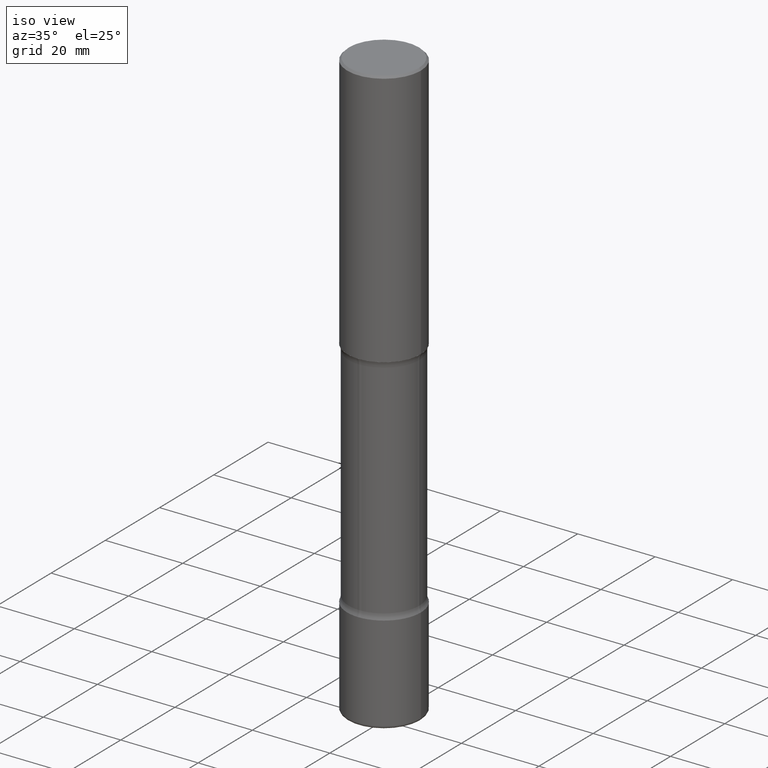
[diagram: clean part render]
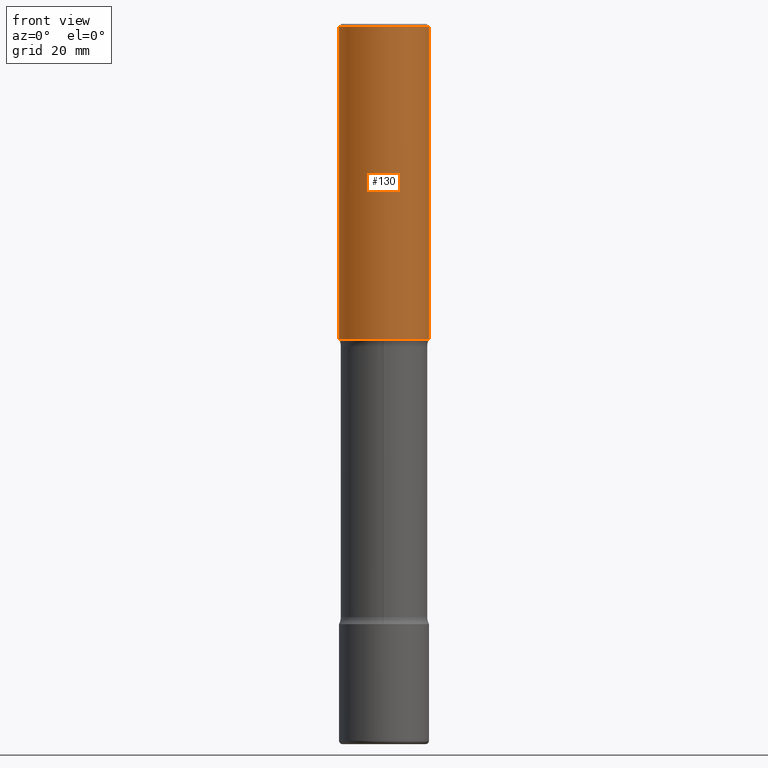
[diagram: tour spotlight — one face highlighted and labeled with its STEP entity id]
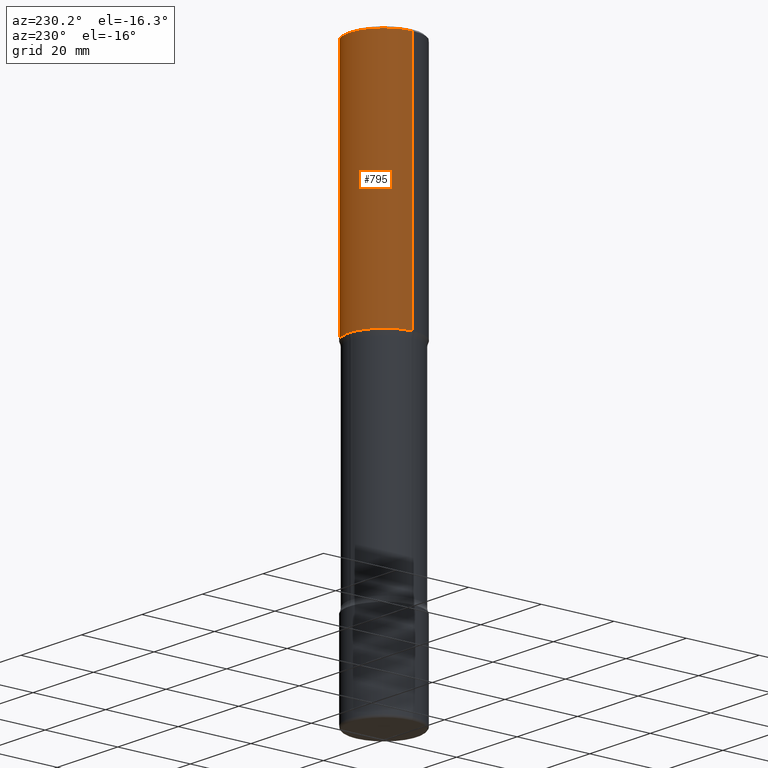
[diagram: tour spotlight — one face highlighted and labeled with its STEP entity id]
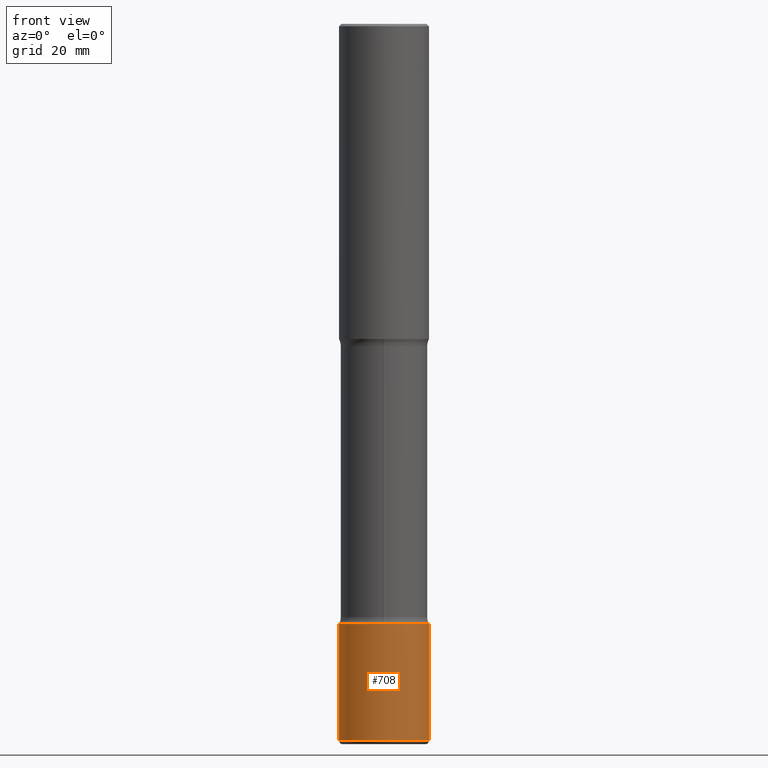
[diagram: tour spotlight — one face highlighted and labeled with its STEP entity id]
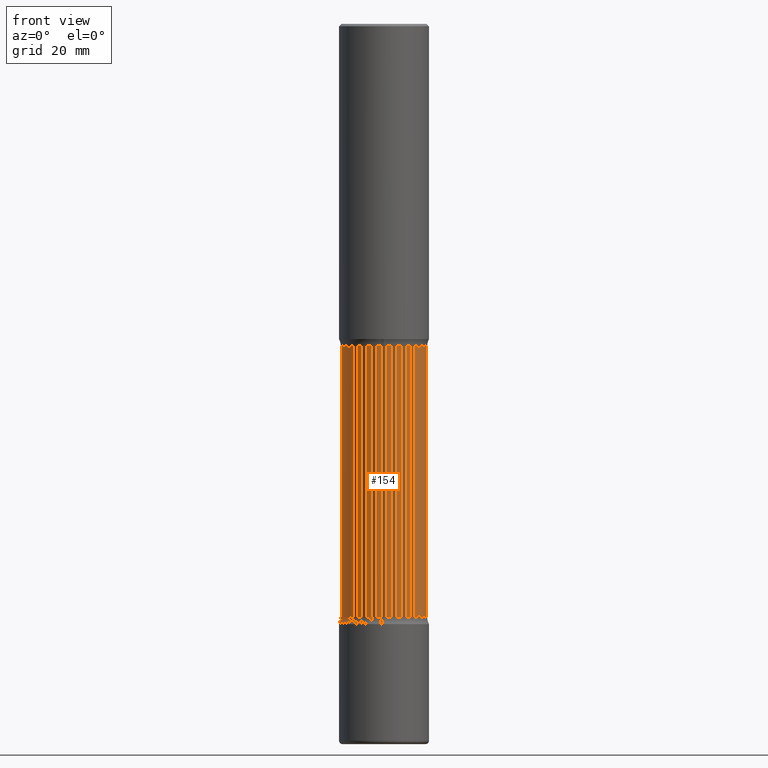
[diagram: tour spotlight — one face highlighted and labeled with its STEP entity id]
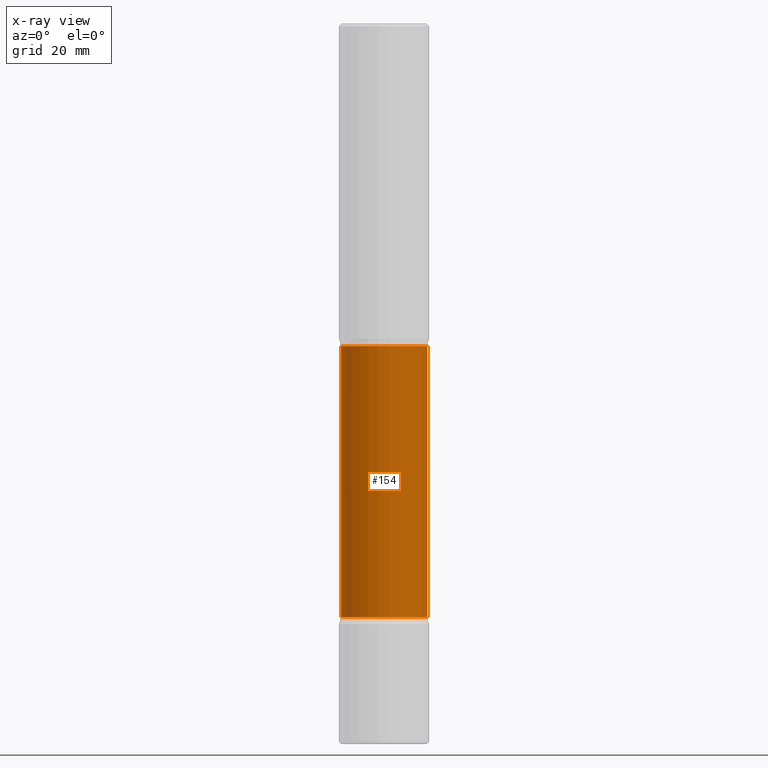
[diagram: x-ray of the same camera — body ghosted, this tour face saturated]
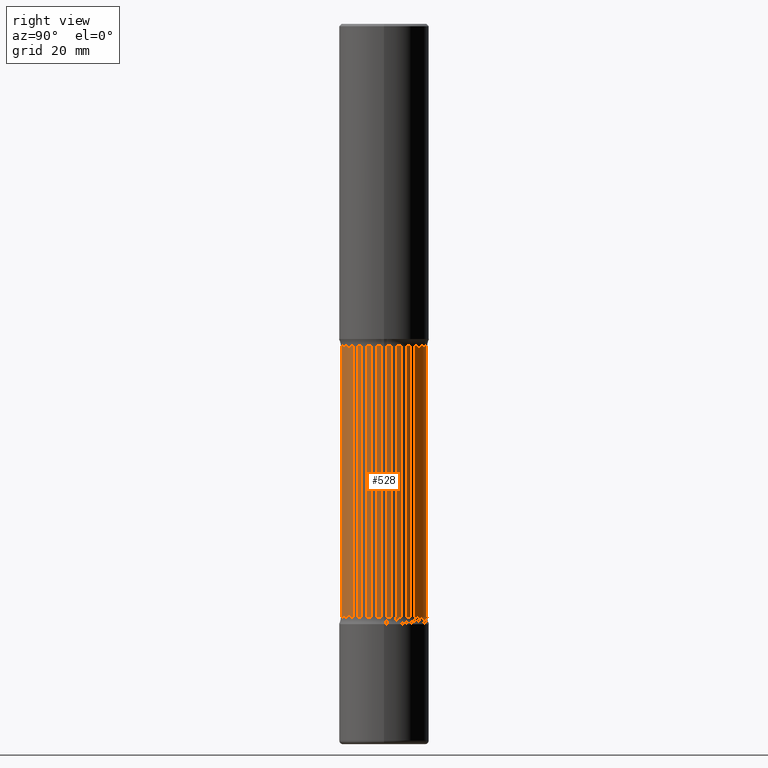
[diagram: tour spotlight — one face highlighted and labeled with its STEP entity id]
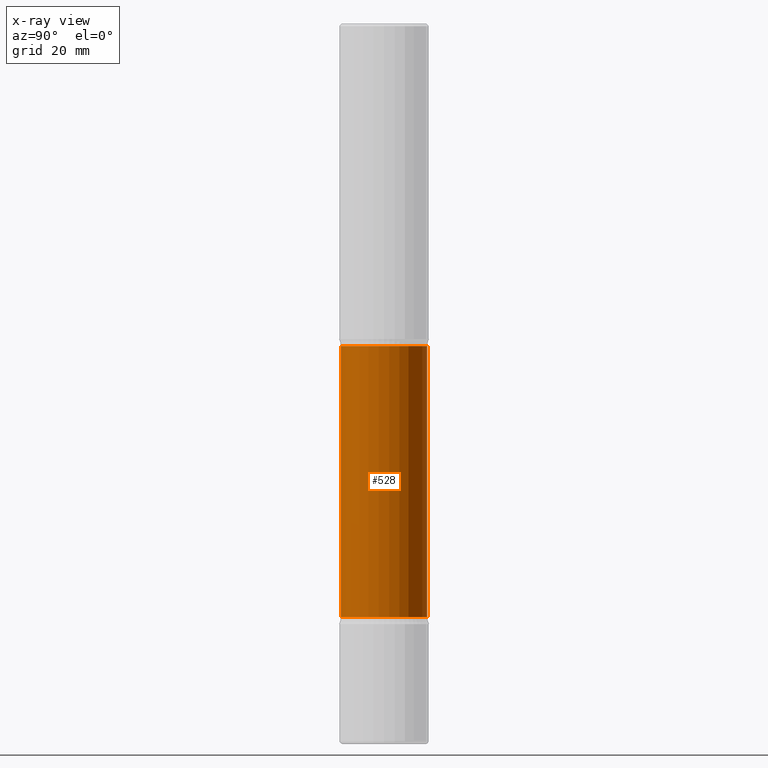
[diagram: x-ray of the same camera — body ghosted, this tour face saturated]
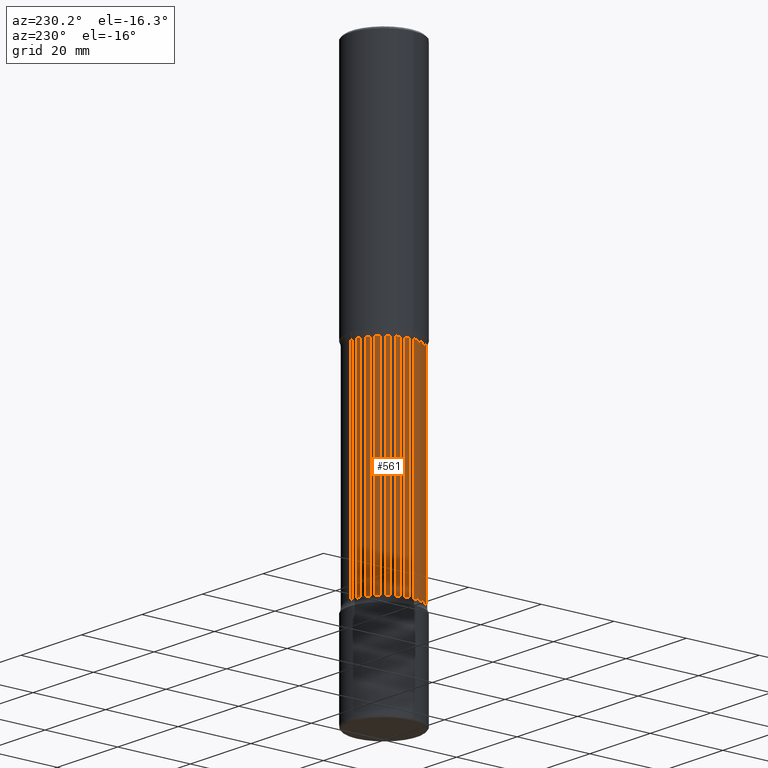
[diagram: tour spotlight — one face highlighted and labeled with its STEP entity id]
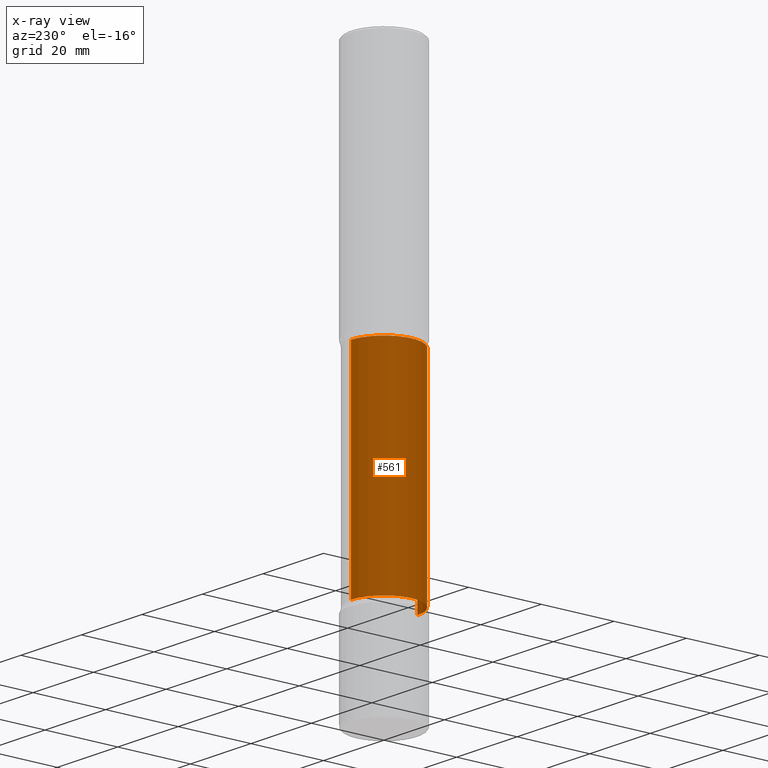
[diagram: x-ray of the same camera — body ghosted, this tour face saturated]
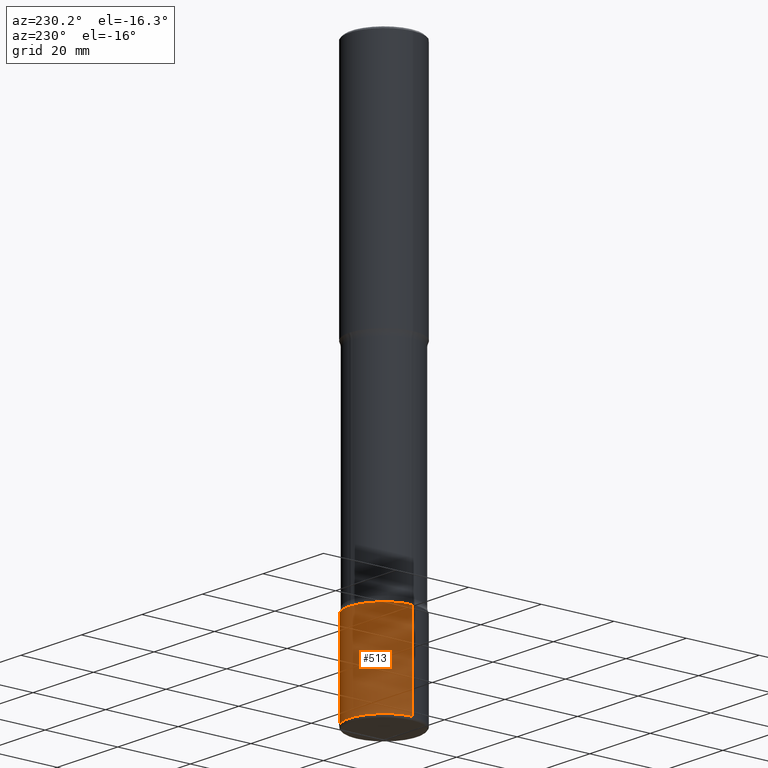
[diagram: tour spotlight — one face highlighted and labeled with its STEP entity id]
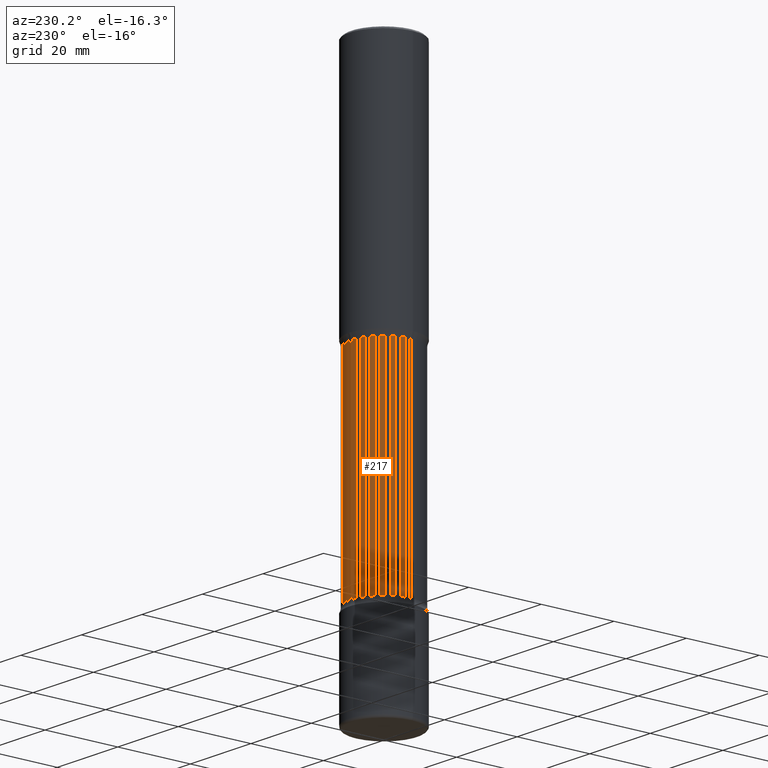
[diagram: tour spotlight — one face highlighted and labeled with its STEP entity id]
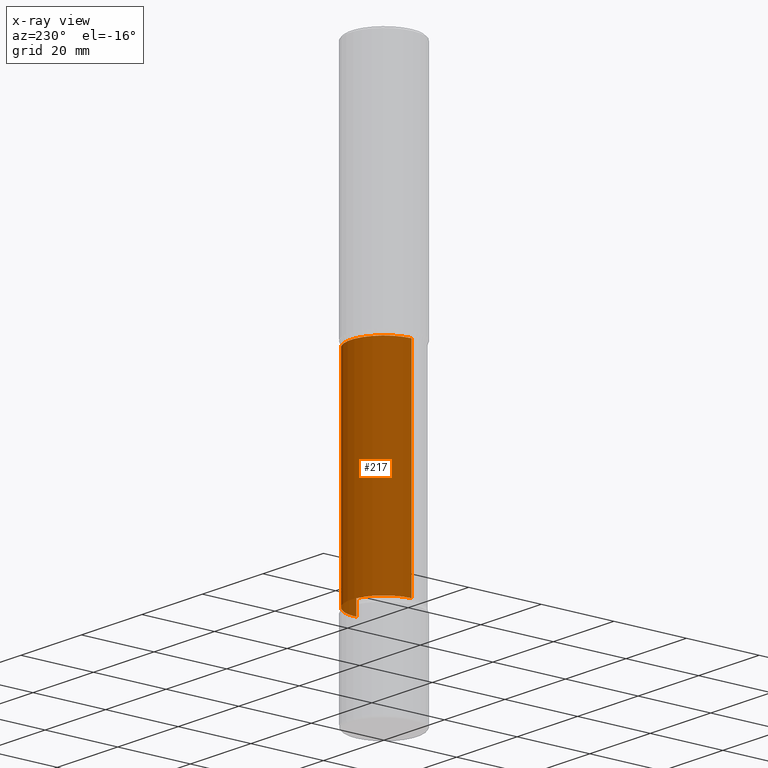
[diagram: x-ray of the same camera — body ghosted, this tour face saturated]
A machine part: a face-by-face anatomy tour. The part has 30 B-rep faces; the first image is the clean iso view, then the 8 largest visible faces are spotlighted one at a time (largest first), each with its STEP entity span.

Face 1 — front view, entity #130. In plain terms, the highlighted cylindrical surface (partial cylindrical patch) has radius 9.525 mm, axis along (-0, 0, 1).
Definition (entity closure, byte-faithful):
#17 = CIRCLE ( 'NONE', #245, 0.3750000000000000555 ) ;
#52 = VECTOR ( 'NONE', #393, 39.37007874015748143 ) ;
#78 = CARTESIAN_POINT ( 'NONE',  ( -0.3750000000000000555, -1.952948811519682680E-15, -2.625000000000000444 ) ) ;
#130 = ADVANCED_FACE ( 'NONE', ( #530 ), #785, .T. ) ;
#139 = ORIENTED_EDGE ( 'NONE', *, *, #179, .T. ) ;
#141 = CARTESIAN_POINT ( 'NONE',  ( 0.3750000000000000555, -1.178374951859560978E-14, -2.625000000000000444 ) ) ;
#170 = DIRECTION ( 'NONE',  ( 1.000000000000000000, -6.982962677686266711E-15, 4.876176775795935793E-29 ) ) ;
#179 = EDGE_CURVE ( 'NONE', #204, #270, #707, .T. ) ;
#196 = EDGE_LOOP ( 'NONE', ( #255, #261, #139, #645 ) ) ;
#201 = VERTEX_POINT ( 'NONE', #78 ) ;
#204 = VERTEX_POINT ( 'NONE', #141 ) ;
#209 = LINE ( 'NONE', #390, #52 ) ;
#222 = DIRECTION ( 'NONE',  ( -2.445468806185136597E-29, 3.491481338843145583E-15, 1.000000000000000000 ) ) ;
#245 = AXIS2_PLACEMENT_3D ( 'NONE', #310, #525, #572 ) ;
#255 = ORIENTED_EDGE ( 'NONE', *, *, #453, .F. ) ;
#256 = CARTESIAN_POINT ( 'NONE',  ( 0.3749999999999998890, -2.618611004132349228E-15, 1.828566290923475362E-29 ) ) ;
#261 = ORIENTED_EDGE ( 'NONE', *, *, #494, .T. ) ;
#270 = VERTEX_POINT ( 'NONE', #524 ) ;
#278 = DIRECTION ( 'NONE',  ( -2.445468806185136597E-29, 3.491481338843145583E-15, 1.000000000000000000 ) ) ;
#310 = CARTESIAN_POINT ( 'NONE',  ( 6.419355616235984688E-29, -9.165138514463258190E-15, -2.625000000000000444 ) ) ;
#390 = CARTESIAN_POINT ( 'NONE',  ( -0.3749999999999998890, 2.664535259100374908E-15, -1.844600658845589038E-29 ) ) ;
#393 = DIRECTION ( 'NONE',  ( -2.445468806185136877E-29, 3.491481338843145188E-15, 1.000000000000000000 ) ) ;
#404 = VERTEX_POINT ( 'NONE', #568 ) ;
#432 = VECTOR ( 'NONE', #506, 39.37007874015748143 ) ;
#453 = EDGE_CURVE ( 'NONE', #201, #404, #209, .T. ) ;
#494 = EDGE_CURVE ( 'NONE', #201, #204, #17, .T. ) ;
#506 = DIRECTION ( 'NONE',  ( -2.445468806185136877E-29, 3.491481338843145188E-15, 1.000000000000000000 ) ) ;
#524 = CARTESIAN_POINT ( 'NONE',  ( 0.3749999999999997780, -2.642516375941186056E-15, -0.02000000000000008715 ) ) ;
#525 = DIRECTION ( 'NONE',  ( -2.445468806185136597E-29, 3.491481338843145583E-15, 1.000000000000000000 ) ) ;
#530 = FACE_OUTER_BOUND ( 'NONE', #196, .T. ) ;
#540 = DIRECTION ( 'NONE',  ( 1.000000000000000000, -6.982962677686265922E-15, 0.000000000000000000 ) ) ;
#562 = EDGE_CURVE ( 'NONE', #404, #270, #688, .T. ) ;
#568 = CARTESIAN_POINT ( 'NONE',  ( -0.3749999999999997780, 2.548781377355484746E-15, -0.02000000000000008715 ) ) ;
#572 = DIRECTION ( 'NONE',  ( 1.000000000000000000, -6.982962677686266711E-15, 0.000000000000000000 ) ) ;
#576 = AXIS2_PLACEMENT_3D ( 'NONE', #729, #222, #170 ) ;
#645 = ORIENTED_EDGE ( 'NONE', *, *, #562, .F. ) ;
#688 = CIRCLE ( 'NONE', #700, 0.3749999999999997780 ) ;
#700 = AXIS2_PLACEMENT_3D ( 'NONE', #731, #278, #540 ) ;
#707 = LINE ( 'NONE', #256, #432 ) ;
#729 = CARTESIAN_POINT ( 'NONE',  ( 0.000000000000000000, 0.000000000000000000, 0.000000000000000000 ) ) ;
#731 = CARTESIAN_POINT ( 'NONE',  ( 4.890937612370294178E-31, -6.982962677686321191E-17, -0.02000000000000008715 ) ) ;
#785 = CYLINDRICAL_SURFACE ( 'NONE', #576, 0.3749999999999998890 ) ;

Face 2 — auxiliary view, entity #795. In plain terms, the highlighted cylindrical surface (partial cylindrical patch) has radius 9.525 mm, axis along (-0, 0, 1).
Definition (entity closure, byte-faithful):
#52 = VECTOR ( 'NONE', #393, 39.37007874015748143 ) ;
#78 = CARTESIAN_POINT ( 'NONE',  ( -0.3750000000000000555, -1.952948811519682680E-15, -2.625000000000000444 ) ) ;
#95 = EDGE_CURVE ( 'NONE', #204, #201, #419, .T. ) ;
#114 = AXIS2_PLACEMENT_3D ( 'NONE', #534, #227, #272 ) ;
#119 = DIRECTION ( 'NONE',  ( -2.445468806185136597E-29, 3.491481338843145583E-15, 1.000000000000000000 ) ) ;
#141 = CARTESIAN_POINT ( 'NONE',  ( 0.3750000000000000555, -1.178374951859560978E-14, -2.625000000000000444 ) ) ;
#148 = EDGE_LOOP ( 'NONE', ( #436, #504, #395, #751 ) ) ;
#160 = EDGE_CURVE ( 'NONE', #270, #404, #659, .T. ) ;
#179 = EDGE_CURVE ( 'NONE', #204, #270, #707, .T. ) ;
#201 = VERTEX_POINT ( 'NONE', #78 ) ;
#204 = VERTEX_POINT ( 'NONE', #141 ) ;
#209 = LINE ( 'NONE', #390, #52 ) ;
#211 = CARTESIAN_POINT ( 'NONE',  ( 0.000000000000000000, 0.000000000000000000, 0.000000000000000000 ) ) ;
#227 = DIRECTION ( 'NONE',  ( -2.445468806185136597E-29, 3.491481338843145583E-15, 1.000000000000000000 ) ) ;
#230 = FACE_OUTER_BOUND ( 'NONE', #148, .T. ) ;
#249 = DIRECTION ( 'NONE',  ( -2.445468806185136597E-29, 3.491481338843145583E-15, 1.000000000000000000 ) ) ;
#256 = CARTESIAN_POINT ( 'NONE',  ( 0.3749999999999998890, -2.618611004132349228E-15, 1.828566290923475362E-29 ) ) ;
#270 = VERTEX_POINT ( 'NONE', #524 ) ;
#272 = DIRECTION ( 'NONE',  ( 1.000000000000000000, -6.982962677686266711E-15, 0.000000000000000000 ) ) ;
#336 = CYLINDRICAL_SURFACE ( 'NONE', #503, 0.3749999999999998890 ) ;
#354 = DIRECTION ( 'NONE',  ( 1.000000000000000000, -6.982962677686265922E-15, 0.000000000000000000 ) ) ;
#390 = CARTESIAN_POINT ( 'NONE',  ( -0.3749999999999998890, 2.664535259100374908E-15, -1.844600658845589038E-29 ) ) ;
#393 = DIRECTION ( 'NONE',  ( -2.445468806185136877E-29, 3.491481338843145188E-15, 1.000000000000000000 ) ) ;
#395 = ORIENTED_EDGE ( 'NONE', *, *, #160, .F. ) ;
#404 = VERTEX_POINT ( 'NONE', #568 ) ;
#419 = CIRCLE ( 'NONE', #114, 0.3750000000000000555 ) ;
#432 = VECTOR ( 'NONE', #506, 39.37007874015748143 ) ;
#436 = ORIENTED_EDGE ( 'NONE', *, *, #95, .T. ) ;
#453 = EDGE_CURVE ( 'NONE', #201, #404, #209, .T. ) ;
#503 = AXIS2_PLACEMENT_3D ( 'NONE', #211, #249, #693 ) ;
#504 = ORIENTED_EDGE ( 'NONE', *, *, #453, .T. ) ;
#506 = DIRECTION ( 'NONE',  ( -2.445468806185136877E-29, 3.491481338843145188E-15, 1.000000000000000000 ) ) ;
#518 = AXIS2_PLACEMENT_3D ( 'NONE', #679, #119, #354 ) ;
#524 = CARTESIAN_POINT ( 'NONE',  ( 0.3749999999999997780, -2.642516375941186056E-15, -0.02000000000000008715 ) ) ;
#534 = CARTESIAN_POINT ( 'NONE',  ( 6.419355616235984688E-29, -9.165138514463258190E-15, -2.625000000000000444 ) ) ;
#568 = CARTESIAN_POINT ( 'NONE',  ( -0.3749999999999997780, 2.548781377355484746E-15, -0.02000000000000008715 ) ) ;
#659 = CIRCLE ( 'NONE', #518, 0.3749999999999997780 ) ;
#679 = CARTESIAN_POINT ( 'NONE',  ( 4.890937612370294178E-31, -6.982962677686321191E-17, -0.02000000000000008715 ) ) ;
#693 = DIRECTION ( 'NONE',  ( 1.000000000000000000, -6.982962677686266711E-15, 4.876176775795935793E-29 ) ) ;
#707 = LINE ( 'NONE', #256, #432 ) ;
#751 = ORIENTED_EDGE ( 'NONE', *, *, #179, .F. ) ;
#795 = ADVANCED_FACE ( 'NONE', ( #230 ), #336, .T. ) ;

Face 3 — front view, entity #708. In plain terms, the highlighted cylindrical surface (partial cylindrical patch) has radius 9.525 mm, axis along (-0, 0, 1).
Definition (entity closure, byte-faithful):
#74 = FACE_OUTER_BOUND ( 'NONE', #138, .T. ) ;
#76 = CARTESIAN_POINT ( 'NONE',  ( 1.222734403092568523E-28, -1.745740669421572989E-14, -5.000000000000000000 ) ) ;
#138 = EDGE_LOOP ( 'NONE', ( #253, #317, #456, #569 ) ) ;
#166 = DIRECTION ( 'NONE',  ( -2.445468806185136597E-29, 3.491481338843145583E-15, 1.000000000000000000 ) ) ;
#177 = LINE ( 'NONE', #220, #747 ) ;
#194 = AXIS2_PLACEMENT_3D ( 'NONE', #303, #357, #479 ) ;
#220 = CARTESIAN_POINT ( 'NONE',  ( 0.3750000000000001110, -2.618611004132350411E-15, 1.828566290923476483E-29 ) ) ;
#223 = AXIS2_PLACEMENT_3D ( 'NONE', #76, #300, #306 ) ;
#228 = CARTESIAN_POINT ( 'NONE',  ( 1.459944877292526494E-28, -2.084414359289357934E-14, -5.969999999999999751 ) ) ;
#253 = ORIENTED_EDGE ( 'NONE', *, *, #613, .F. ) ;
#262 = VERTEX_POINT ( 'NONE', #275 ) ;
#275 = CARTESIAN_POINT ( 'NONE',  ( 0.3750000000000002220, -2.346275459702592935E-14, -5.969999999999999751 ) ) ;
#300 = DIRECTION ( 'NONE',  ( -2.445468806185136597E-29, 3.491481338843145583E-15, 1.000000000000000000 ) ) ;
#303 = CARTESIAN_POINT ( 'NONE',  ( 0.000000000000000000, 0.000000000000000000, 0.000000000000000000 ) ) ;
#306 = DIRECTION ( 'NONE',  ( 1.000000000000000000, -6.982962677686266711E-15, 0.000000000000000000 ) ) ;
#317 = ORIENTED_EDGE ( 'NONE', *, *, #759, .T. ) ;
#320 = VERTEX_POINT ( 'NONE', #801 ) ;
#357 = DIRECTION ( 'NONE',  ( -2.445468806185136597E-29, 3.491481338843145583E-15, 1.000000000000000000 ) ) ;
#424 = LINE ( 'NONE', #426, #736 ) ;
#426 = CARTESIAN_POINT ( 'NONE',  ( -0.3750000000000001110, 2.664535259100376486E-15, -1.844600658845590159E-29 ) ) ;
#456 = ORIENTED_EDGE ( 'NONE', *, *, #750, .T. ) ;
#466 = CIRCLE ( 'NONE', #566, 0.3750000000000001110 ) ;
#468 = VERTEX_POINT ( 'NONE', #763 ) ;
#479 = DIRECTION ( 'NONE',  ( 1.000000000000000000, -6.982962677686265922E-15, 4.876176775795935793E-29 ) ) ;
#543 = DIRECTION ( 'NONE',  ( 1.000000000000000000, -6.982962677686270655E-15, 0.000000000000000000 ) ) ;
#547 = CARTESIAN_POINT ( 'NONE',  ( 0.3750000000000000555, -2.007601769834807990E-14, -5.000000000000000000 ) ) ;
#566 = AXIS2_PLACEMENT_3D ( 'NONE', #228, #166, #543 ) ;
#569 = ORIENTED_EDGE ( 'NONE', *, *, #752, .F. ) ;
#570 = DIRECTION ( 'NONE',  ( -2.445468806185136877E-29, 3.491481338843145188E-15, 1.000000000000000000 ) ) ;
#593 = VERTEX_POINT ( 'NONE', #547 ) ;
#613 = EDGE_CURVE ( 'NONE', #320, #468, #424, .T. ) ;
#686 = DIRECTION ( 'NONE',  ( -2.445468806185136877E-29, 3.491481338843145188E-15, 1.000000000000000000 ) ) ;
#702 = CYLINDRICAL_SURFACE ( 'NONE', #194, 0.3750000000000001110 ) ;
#708 = ADVANCED_FACE ( 'NONE', ( #74 ), #702, .T. ) ;
#736 = VECTOR ( 'NONE', #570, 39.37007874015748143 ) ;
#747 = VECTOR ( 'NONE', #686, 39.37007874015748143 ) ;
#750 = EDGE_CURVE ( 'NONE', #262, #593, #177, .T. ) ;
#752 = EDGE_CURVE ( 'NONE', #468, #593, #790, .T. ) ;
#759 = EDGE_CURVE ( 'NONE', #320, #262, #466, .T. ) ;
#763 = CARTESIAN_POINT ( 'NONE',  ( -0.3750000000000000555, -1.648623988445427734E-14, -5.000000000000000000 ) ) ;
#790 = CIRCLE ( 'NONE', #223, 0.3750000000000000555 ) ;
#801 = CARTESIAN_POINT ( 'NONE',  ( -0.3750000000000002220, -1.817960833379319733E-14, -5.969999999999999751 ) ) ;

Face 4 — front view, entity #154. An x-ray twin of the same camera follows (body ghosted, this face saturated) — the face is partly hidden behind the body. In plain terms, the highlighted cylindrical surface (partial cylindrical patch) has radius 9.144 mm, axis along (-0, 0, 1).
Definition (entity closure, byte-faithful):
#1 = DIRECTION ( 'NONE',  ( -2.445468806185136597E-29, 3.491481338843145583E-15, 1.000000000000000000 ) ) ;
#3 = CIRCLE ( 'NONE', #35, 0.3600000000000002642 ) ;
#21 = LINE ( 'NONE', #389, #663 ) ;
#35 = AXIS2_PLACEMENT_3D ( 'NONE', #288, #171, #478 ) ;
#72 = EDGE_CURVE ( 'NONE', #602, #89, #163, .T. ) ;
#82 = AXIS2_PLACEMENT_3D ( 'NONE', #344, #470, #734 ) ;
#86 = CARTESIAN_POINT ( 'NONE',  ( -0.3600000000000002642, -1.474251453077752871E-14, -4.940628289564810594 ) ) ;
#89 = VERTEX_POINT ( 'NONE', #606 ) ;
#103 = ORIENTED_EDGE ( 'NONE', *, *, #724, .T. ) ;
#154 = ADVANCED_FACE ( 'NONE', ( #229 ), #216, .T. ) ;
#163 = CIRCLE ( 'NONE', #564, 0.3599999999999997646 ) ;
#171 = DIRECTION ( 'NONE',  ( -2.445468806185136597E-29, 3.491481338843145583E-15, 1.000000000000000000 ) ) ;
#183 = ORIENTED_EDGE ( 'NONE', *, *, #369, .F. ) ;
#216 = CYLINDRICAL_SURFACE ( 'NONE', #82, 0.3599999999999999867 ) ;
#229 = FACE_OUTER_BOUND ( 'NONE', #719, .T. ) ;
#288 = CARTESIAN_POINT ( 'NONE',  ( 1.208215236508657052E-28, -1.725011147517606617E-14, -4.940628289564810594 ) ) ;
#297 = EDGE_CURVE ( 'NONE', #555, #484, #3, .T. ) ;
#298 = DIRECTION ( 'NONE',  ( -2.445468806185136877E-29, 3.491481338843145188E-15, 1.000000000000000000 ) ) ;
#333 = ORIENTED_EDGE ( 'NONE', *, *, #72, .F. ) ;
#344 = CARTESIAN_POINT ( 'NONE',  ( 6.419355616235984688E-29, -9.165138514463258190E-15, -2.625000000000000444 ) ) ;
#347 = CARTESIAN_POINT ( 'NONE',  ( -0.3599999999999997646, -6.657541570064724674E-15, -2.684371710435190739 ) ) ;
#361 = VECTOR ( 'NONE', #298, 39.37007874015748143 ) ;
#369 = EDGE_CURVE ( 'NONE', #555, #602, #489, .T. ) ;
#389 = CARTESIAN_POINT ( 'NONE',  ( 0.3599999999999999867, -1.167900507843031484E-14, -2.625000000000000444 ) ) ;
#470 = DIRECTION ( 'NONE',  ( -2.445468806185136597E-29, 3.491481338843145583E-15, 1.000000000000000000 ) ) ;
#478 = DIRECTION ( 'NONE',  ( 1.000000000000000000, -6.982962677686263555E-15, 0.000000000000000000 ) ) ;
#482 = CARTESIAN_POINT ( 'NONE',  ( -0.3599999999999999867, -6.607184665726898404E-15, -2.625000000000000444 ) ) ;
#484 = VERTEX_POINT ( 'NONE', #578 ) ;
#489 = LINE ( 'NONE', #482, #361 ) ;
#555 = VERTEX_POINT ( 'NONE', #86 ) ;
#564 = AXIS2_PLACEMENT_3D ( 'NONE', #793, #1, #668 ) ;
#578 = CARTESIAN_POINT ( 'NONE',  ( 0.3600000000000002642, -1.976397803914312281E-14, -4.940628289564810594 ) ) ;
#602 = VERTEX_POINT ( 'NONE', #347 ) ;
#606 = CARTESIAN_POINT ( 'NONE',  ( 0.3599999999999997646, -1.188630029746997855E-14, -2.684371710435190739 ) ) ;
#648 = DIRECTION ( 'NONE',  ( -2.445468806185136877E-29, 3.491481338843145188E-15, 1.000000000000000000 ) ) ;
#663 = VECTOR ( 'NONE', #648, 39.37007874015748143 ) ;
#668 = DIRECTION ( 'NONE',  ( 1.000000000000000000, -6.982962677686267499E-15, 0.000000000000000000 ) ) ;
#703 = ORIENTED_EDGE ( 'NONE', *, *, #297, .T. ) ;
#719 = EDGE_LOOP ( 'NONE', ( #183, #703, #103, #333 ) ) ;
#724 = EDGE_CURVE ( 'NONE', #484, #89, #21, .T. ) ;
#734 = DIRECTION ( 'NONE',  ( 1.000000000000000000, -6.982962677686269077E-15, 0.000000000000000000 ) ) ;
#793 = CARTESIAN_POINT ( 'NONE',  ( 6.564547282075098274E-29, -9.372433733502923486E-15, -2.684371710435190739 ) ) ;

Face 5 — right view, entity #528. An x-ray twin of the same camera follows (body ghosted, this face saturated) — the face is partly hidden behind the body. In plain terms, the highlighted cylindrical surface (partial cylindrical patch) has radius 9.144 mm, axis along (0, -0, -1).
Definition (entity closure, byte-faithful):
#5 = VECTOR ( 'NONE', #792, 39.37007874015748143 ) ;
#25 = CARTESIAN_POINT ( 'NONE',  ( 1.208199574947105826E-28, -1.725033575765148709E-14, -4.940628289564810594 ) ) ;
#51 = DIRECTION ( 'NONE',  ( 2.448106689014602584E-29, -3.487703740492383676E-15, -1.000000000000000000 ) ) ;
#68 = AXIS2_PLACEMENT_3D ( 'NONE', #25, #497, #379 ) ;
#117 = CARTESIAN_POINT ( 'NONE',  ( -2.469779279197604413E-15, -0.3600000000000208589, -5.989261863381288187 ) ) ;
#128 = CARTESIAN_POINT ( 'NONE',  ( 2.513866563967178131E-15, 0.3599999999999830003, -4.940628289564811482 ) ) ;
#190 = EDGE_CURVE ( 'NONE', #367, #532, #636, .T. ) ;
#254 = CIRCLE ( 'NONE', #68, 0.3600000000000002642 ) ;
#258 = ORIENTED_EDGE ( 'NONE', *, *, #671, .F. ) ;
#299 = CARTESIAN_POINT ( 'NONE',  ( 2.513866563967119756E-15, 0.3599999999999904388, -2.684371710435191627 ) ) ;
#302 = VECTOR ( 'NONE', #765, 39.37007874015748143 ) ;
#338 = VERTEX_POINT ( 'NONE', #730 ) ;
#346 = FACE_OUTER_BOUND ( 'NONE', #761, .T. ) ;
#367 = VERTEX_POINT ( 'NONE', #299 ) ;
#379 = DIRECTION ( 'NONE',  ( 6.982962677686265922E-15, 1.000000000000000000, -3.035386659626956765E-15 ) ) ;
#440 = ORIENTED_EDGE ( 'NONE', *, *, #760, .T. ) ;
#457 = ORIENTED_EDGE ( 'NONE', *, *, #571, .T. ) ;
#462 = DIRECTION ( 'NONE',  ( 6.982962677686266711E-15, 1.000000000000000000, -3.035386659626961104E-15 ) ) ;
#469 = CARTESIAN_POINT ( 'NONE',  ( -2.521233014180918226E-15, -0.3600000000000175282, -4.940628289564809705 ) ) ;
#472 = CARTESIAN_POINT ( 'NONE',  ( 1.464916261585646880E-28, -2.090765899545711847E-14, -5.989261863381289963 ) ) ;
#477 = AXIS2_PLACEMENT_3D ( 'NONE', #531, #51, #462 ) ;
#497 = DIRECTION ( 'NONE',  ( 2.448106689014602584E-29, -3.487703740492383676E-15, -1.000000000000000000 ) ) ;
#528 = ADVANCED_FACE ( 'NONE', ( #346 ), #796, .T. ) ;
#531 = CARTESIAN_POINT ( 'NONE',  ( 6.558438925970630496E-29, -9.381181247110562342E-15, -2.684371710435190739 ) ) ;
#532 = VERTEX_POINT ( 'NONE', #128 ) ;
#563 = DIRECTION ( 'NONE',  ( 6.982962677686265133E-15, 1.000000000000000000, -3.035386659626959132E-15 ) ) ;
#571 = EDGE_CURVE ( 'NONE', #338, #626, #681, .T. ) ;
#626 = VERTEX_POINT ( 'NONE', #469 ) ;
#636 = LINE ( 'NONE', #754, #302 ) ;
#671 = EDGE_CURVE ( 'NONE', #532, #626, #254, .T. ) ;
#675 = AXIS2_PLACEMENT_3D ( 'NONE', #472, #676, #563 ) ;
#676 = DIRECTION ( 'NONE',  ( 2.448106689014602584E-29, -3.487703740492383676E-15, -1.000000000000000000 ) ) ;
#681 = LINE ( 'NONE', #117, #5 ) ;
#701 = CIRCLE ( 'NONE', #477, 0.3599999999999997646 ) ;
#722 = ORIENTED_EDGE ( 'NONE', *, *, #190, .F. ) ;
#730 = CARTESIAN_POINT ( 'NONE',  ( -2.521233014180972263E-15, -0.3600000000000091460, -2.684371710435189406 ) ) ;
#754 = CARTESIAN_POINT ( 'NONE',  ( 2.513866563967202192E-15, 0.3599999999999790590, -5.989261863381290851 ) ) ;
#760 = EDGE_CURVE ( 'NONE', #367, #338, #701, .T. ) ;
#761 = EDGE_LOOP ( 'NONE', ( #440, #457, #258, #722 ) ) ;
#765 = DIRECTION ( 'NONE',  ( 2.448106689014602865E-29, -3.487703740492383282E-15, -1.000000000000000000 ) ) ;
#792 = DIRECTION ( 'NONE',  ( 2.448106689014602865E-29, -3.487703740492383282E-15, -1.000000000000000000 ) ) ;
#796 = CYLINDRICAL_SURFACE ( 'NONE', #675, 0.3599999999999999867 ) ;

Face 6 — auxiliary view, entity #561. An x-ray twin of the same camera follows (body ghosted, this face saturated) — the face is partly hidden behind the body. In plain terms, the highlighted cylindrical surface (partial cylindrical patch) has radius 9.144 mm, axis along (0, -0, -1).
Definition (entity closure, byte-faithful):
#5 = VECTOR ( 'NONE', #792, 39.37007874015748143 ) ;
#37 = CARTESIAN_POINT ( 'NONE',  ( 6.558438925970630496E-29, -9.381181247110562342E-15, -2.684371710435190739 ) ) ;
#47 = ORIENTED_EDGE ( 'NONE', *, *, #571, .F. ) ;
#67 = CARTESIAN_POINT ( 'NONE',  ( 1.208199574947105826E-28, -1.725033575765148709E-14, -4.940628289564810594 ) ) ;
#75 = ORIENTED_EDGE ( 'NONE', *, *, #623, .F. ) ;
#91 = AXIS2_PLACEMENT_3D ( 'NONE', #232, #340, #737 ) ;
#117 = CARTESIAN_POINT ( 'NONE',  ( -2.469779279197604413E-15, -0.3600000000000208589, -5.989261863381288187 ) ) ;
#128 = CARTESIAN_POINT ( 'NONE',  ( 2.513866563967178131E-15, 0.3599999999999830003, -4.940628289564811482 ) ) ;
#190 = EDGE_CURVE ( 'NONE', #367, #532, #636, .T. ) ;
#210 = ORIENTED_EDGE ( 'NONE', *, *, #248, .T. ) ;
#232 = CARTESIAN_POINT ( 'NONE',  ( 1.464916261585646880E-28, -2.090765899545711847E-14, -5.989261863381289963 ) ) ;
#234 = AXIS2_PLACEMENT_3D ( 'NONE', #67, #728, #614 ) ;
#248 = EDGE_CURVE ( 'NONE', #338, #367, #538, .T. ) ;
#299 = CARTESIAN_POINT ( 'NONE',  ( 2.513866563967119756E-15, 0.3599999999999904388, -2.684371710435191627 ) ) ;
#302 = VECTOR ( 'NONE', #765, 39.37007874015748143 ) ;
#325 = DIRECTION ( 'NONE',  ( 2.448106689014602584E-29, -3.487703740492383676E-15, -1.000000000000000000 ) ) ;
#338 = VERTEX_POINT ( 'NONE', #730 ) ;
#340 = DIRECTION ( 'NONE',  ( 2.448106689014602584E-29, -3.487703740492383676E-15, -1.000000000000000000 ) ) ;
#367 = VERTEX_POINT ( 'NONE', #299 ) ;
#375 = ORIENTED_EDGE ( 'NONE', *, *, #190, .T. ) ;
#444 = CYLINDRICAL_SURFACE ( 'NONE', #91, 0.3599999999999999867 ) ;
#469 = CARTESIAN_POINT ( 'NONE',  ( -2.521233014180918226E-15, -0.3600000000000175282, -4.940628289564809705 ) ) ;
#532 = VERTEX_POINT ( 'NONE', #128 ) ;
#538 = CIRCLE ( 'NONE', #618, 0.3599999999999997646 ) ;
#561 = ADVANCED_FACE ( 'NONE', ( #767 ), #444, .T. ) ;
#571 = EDGE_CURVE ( 'NONE', #338, #626, #681, .T. ) ;
#599 = CIRCLE ( 'NONE', #234, 0.3600000000000002642 ) ;
#614 = DIRECTION ( 'NONE',  ( 6.982962677686265922E-15, 1.000000000000000000, -3.035386659626956765E-15 ) ) ;
#618 = AXIS2_PLACEMENT_3D ( 'NONE', #37, #325, #715 ) ;
#623 = EDGE_CURVE ( 'NONE', #626, #532, #599, .T. ) ;
#626 = VERTEX_POINT ( 'NONE', #469 ) ;
#636 = LINE ( 'NONE', #754, #302 ) ;
#681 = LINE ( 'NONE', #117, #5 ) ;
#690 = EDGE_LOOP ( 'NONE', ( #47, #210, #375, #75 ) ) ;
#715 = DIRECTION ( 'NONE',  ( 6.982962677686266711E-15, 1.000000000000000000, -3.035386659626961104E-15 ) ) ;
#728 = DIRECTION ( 'NONE',  ( 2.448106689014602584E-29, -3.487703740492383676E-15, -1.000000000000000000 ) ) ;
#730 = CARTESIAN_POINT ( 'NONE',  ( -2.521233014180972263E-15, -0.3600000000000091460, -2.684371710435189406 ) ) ;
#737 = DIRECTION ( 'NONE',  ( 6.982962677686265133E-15, 1.000000000000000000, -3.035386659626959132E-15 ) ) ;
#754 = CARTESIAN_POINT ( 'NONE',  ( 2.513866563967202192E-15, 0.3599999999999790590, -5.989261863381290851 ) ) ;
#765 = DIRECTION ( 'NONE',  ( 2.448106689014602865E-29, -3.487703740492383282E-15, -1.000000000000000000 ) ) ;
#767 = FACE_OUTER_BOUND ( 'NONE', #690, .T. ) ;
#792 = DIRECTION ( 'NONE',  ( 2.448106689014602865E-29, -3.487703740492383282E-15, -1.000000000000000000 ) ) ;

Face 7 — auxiliary view, entity #513. In plain terms, the highlighted cylindrical surface (partial cylindrical patch) has radius 9.525 mm, axis along (-0, 0, 1).
Definition (entity closure, byte-faithful):
#6 = DIRECTION ( 'NONE',  ( -2.445468806185136597E-29, 3.491481338843145583E-15, 1.000000000000000000 ) ) ;
#11 = ORIENTED_EDGE ( 'NONE', *, *, #750, .F. ) ;
#87 = DIRECTION ( 'NONE',  ( 1.000000000000000000, -6.982962677686265922E-15, 4.876176775795935793E-29 ) ) ;
#132 = DIRECTION ( 'NONE',  ( -2.445468806185136597E-29, 3.491481338843145583E-15, 1.000000000000000000 ) ) ;
#177 = LINE ( 'NONE', #220, #747 ) ;
#189 = DIRECTION ( 'NONE',  ( 1.000000000000000000, -6.982962677686270655E-15, 0.000000000000000000 ) ) ;
#220 = CARTESIAN_POINT ( 'NONE',  ( 0.3750000000000001110, -2.618611004132350411E-15, 1.828566290923476483E-29 ) ) ;
#240 = CARTESIAN_POINT ( 'NONE',  ( 1.222734403092568523E-28, -1.745740669421572989E-14, -5.000000000000000000 ) ) ;
#251 = CIRCLE ( 'NONE', #720, 0.3750000000000000555 ) ;
#262 = VERTEX_POINT ( 'NONE', #275 ) ;
#275 = CARTESIAN_POINT ( 'NONE',  ( 0.3750000000000002220, -2.346275459702592935E-14, -5.969999999999999751 ) ) ;
#307 = DIRECTION ( 'NONE',  ( 1.000000000000000000, -6.982962677686266711E-15, 0.000000000000000000 ) ) ;
#316 = AXIS2_PLACEMENT_3D ( 'NONE', #358, #132, #189 ) ;
#320 = VERTEX_POINT ( 'NONE', #801 ) ;
#358 = CARTESIAN_POINT ( 'NONE',  ( 1.459944877292526494E-28, -2.084414359289357934E-14, -5.969999999999999751 ) ) ;
#359 = EDGE_CURVE ( 'NONE', #593, #468, #251, .T. ) ;
#365 = CYLINDRICAL_SURFACE ( 'NONE', #402, 0.3750000000000001110 ) ;
#374 = CIRCLE ( 'NONE', #316, 0.3750000000000001110 ) ;
#398 = ORIENTED_EDGE ( 'NONE', *, *, #418, .T. ) ;
#402 = AXIS2_PLACEMENT_3D ( 'NONE', #557, #633, #87 ) ;
#418 = EDGE_CURVE ( 'NONE', #262, #320, #374, .T. ) ;
#424 = LINE ( 'NONE', #426, #736 ) ;
#426 = CARTESIAN_POINT ( 'NONE',  ( -0.3750000000000001110, 2.664535259100376486E-15, -1.844600658845590159E-29 ) ) ;
#429 = EDGE_LOOP ( 'NONE', ( #398, #515, #431, #11 ) ) ;
#431 = ORIENTED_EDGE ( 'NONE', *, *, #359, .F. ) ;
#468 = VERTEX_POINT ( 'NONE', #763 ) ;
#513 = ADVANCED_FACE ( 'NONE', ( #683 ), #365, .T. ) ;
#515 = ORIENTED_EDGE ( 'NONE', *, *, #613, .T. ) ;
#547 = CARTESIAN_POINT ( 'NONE',  ( 0.3750000000000000555, -2.007601769834807990E-14, -5.000000000000000000 ) ) ;
#557 = CARTESIAN_POINT ( 'NONE',  ( 0.000000000000000000, 0.000000000000000000, 0.000000000000000000 ) ) ;
#570 = DIRECTION ( 'NONE',  ( -2.445468806185136877E-29, 3.491481338843145188E-15, 1.000000000000000000 ) ) ;
#593 = VERTEX_POINT ( 'NONE', #547 ) ;
#613 = EDGE_CURVE ( 'NONE', #320, #468, #424, .T. ) ;
#633 = DIRECTION ( 'NONE',  ( -2.445468806185136597E-29, 3.491481338843145583E-15, 1.000000000000000000 ) ) ;
#683 = FACE_OUTER_BOUND ( 'NONE', #429, .T. ) ;
#686 = DIRECTION ( 'NONE',  ( -2.445468806185136877E-29, 3.491481338843145188E-15, 1.000000000000000000 ) ) ;
#720 = AXIS2_PLACEMENT_3D ( 'NONE', #240, #6, #307 ) ;
#736 = VECTOR ( 'NONE', #570, 39.37007874015748143 ) ;
#747 = VECTOR ( 'NONE', #686, 39.37007874015748143 ) ;
#750 = EDGE_CURVE ( 'NONE', #262, #593, #177, .T. ) ;
#763 = CARTESIAN_POINT ( 'NONE',  ( -0.3750000000000000555, -1.648623988445427734E-14, -5.000000000000000000 ) ) ;
#801 = CARTESIAN_POINT ( 'NONE',  ( -0.3750000000000002220, -1.817960833379319733E-14, -5.969999999999999751 ) ) ;

Face 8 — auxiliary view, entity #217. An x-ray twin of the same camera follows (body ghosted, this face saturated) — the face is partly hidden behind the body. In plain terms, the highlighted cylindrical surface (partial cylindrical patch) has radius 9.144 mm, axis along (-0, 0, 1).
Definition (entity closure, byte-faithful):
#21 = LINE ( 'NONE', #389, #663 ) ;
#29 = DIRECTION ( 'NONE',  ( 1.000000000000000000, -6.982962677686269077E-15, 0.000000000000000000 ) ) ;
#38 = ORIENTED_EDGE ( 'NONE', *, *, #631, .T. ) ;
#48 = EDGE_LOOP ( 'NONE', ( #38, #136, #798, #464 ) ) ;
#86 = CARTESIAN_POINT ( 'NONE',  ( -0.3600000000000002642, -1.474251453077752871E-14, -4.940628289564810594 ) ) ;
#89 = VERTEX_POINT ( 'NONE', #606 ) ;
#106 = AXIS2_PLACEMENT_3D ( 'NONE', #118, #352, #290 ) ;
#116 = AXIS2_PLACEMENT_3D ( 'NONE', #257, #710, #197 ) ;
#118 = CARTESIAN_POINT ( 'NONE',  ( 1.208215236508657052E-28, -1.725011147517606617E-14, -4.940628289564810594 ) ) ;
#136 = ORIENTED_EDGE ( 'NONE', *, *, #369, .T. ) ;
#197 = DIRECTION ( 'NONE',  ( 1.000000000000000000, -6.982962677686267499E-15, 0.000000000000000000 ) ) ;
#217 = ADVANCED_FACE ( 'NONE', ( #447 ), #459, .T. ) ;
#257 = CARTESIAN_POINT ( 'NONE',  ( 6.564547282075098274E-29, -9.372433733502923486E-15, -2.684371710435190739 ) ) ;
#290 = DIRECTION ( 'NONE',  ( 1.000000000000000000, -6.982962677686263555E-15, 0.000000000000000000 ) ) ;
#298 = DIRECTION ( 'NONE',  ( -2.445468806185136877E-29, 3.491481338843145188E-15, 1.000000000000000000 ) ) ;
#330 = CIRCLE ( 'NONE', #106, 0.3600000000000002642 ) ;
#337 = CARTESIAN_POINT ( 'NONE',  ( 6.419355616235984688E-29, -9.165138514463258190E-15, -2.625000000000000444 ) ) ;
#347 = CARTESIAN_POINT ( 'NONE',  ( -0.3599999999999997646, -6.657541570064724674E-15, -2.684371710435190739 ) ) ;
#352 = DIRECTION ( 'NONE',  ( -2.445468806185136597E-29, 3.491481338843145583E-15, 1.000000000000000000 ) ) ;
#361 = VECTOR ( 'NONE', #298, 39.37007874015748143 ) ;
#369 = EDGE_CURVE ( 'NONE', #555, #602, #489, .T. ) ;
#385 = AXIS2_PLACEMENT_3D ( 'NONE', #337, #591, #29 ) ;
#389 = CARTESIAN_POINT ( 'NONE',  ( 0.3599999999999999867, -1.167900507843031484E-14, -2.625000000000000444 ) ) ;
#447 = FACE_OUTER_BOUND ( 'NONE', #48, .T. ) ;
#459 = CYLINDRICAL_SURFACE ( 'NONE', #385, 0.3599999999999999867 ) ;
#464 = ORIENTED_EDGE ( 'NONE', *, *, #724, .F. ) ;
#482 = CARTESIAN_POINT ( 'NONE',  ( -0.3599999999999999867, -6.607184665726898404E-15, -2.625000000000000444 ) ) ;
#484 = VERTEX_POINT ( 'NONE', #578 ) ;
#488 = CIRCLE ( 'NONE', #116, 0.3599999999999997646 ) ;
#489 = LINE ( 'NONE', #482, #361 ) ;
#555 = VERTEX_POINT ( 'NONE', #86 ) ;
#578 = CARTESIAN_POINT ( 'NONE',  ( 0.3600000000000002642, -1.976397803914312281E-14, -4.940628289564810594 ) ) ;
#591 = DIRECTION ( 'NONE',  ( -2.445468806185136597E-29, 3.491481338843145583E-15, 1.000000000000000000 ) ) ;
#602 = VERTEX_POINT ( 'NONE', #347 ) ;
#606 = CARTESIAN_POINT ( 'NONE',  ( 0.3599999999999997646, -1.188630029746997855E-14, -2.684371710435190739 ) ) ;
#631 = EDGE_CURVE ( 'NONE', #484, #555, #330, .T. ) ;
#648 = DIRECTION ( 'NONE',  ( -2.445468806185136877E-29, 3.491481338843145188E-15, 1.000000000000000000 ) ) ;
#663 = VECTOR ( 'NONE', #648, 39.37007874015748143 ) ;
#696 = EDGE_CURVE ( 'NONE', #89, #602, #488, .T. ) ;
#710 = DIRECTION ( 'NONE',  ( -2.445468806185136597E-29, 3.491481338843145583E-15, 1.000000000000000000 ) ) ;
#724 = EDGE_CURVE ( 'NONE', #484, #89, #21, .T. ) ;
#798 = ORIENTED_EDGE ( 'NONE', *, *, #696, .F. ) ;